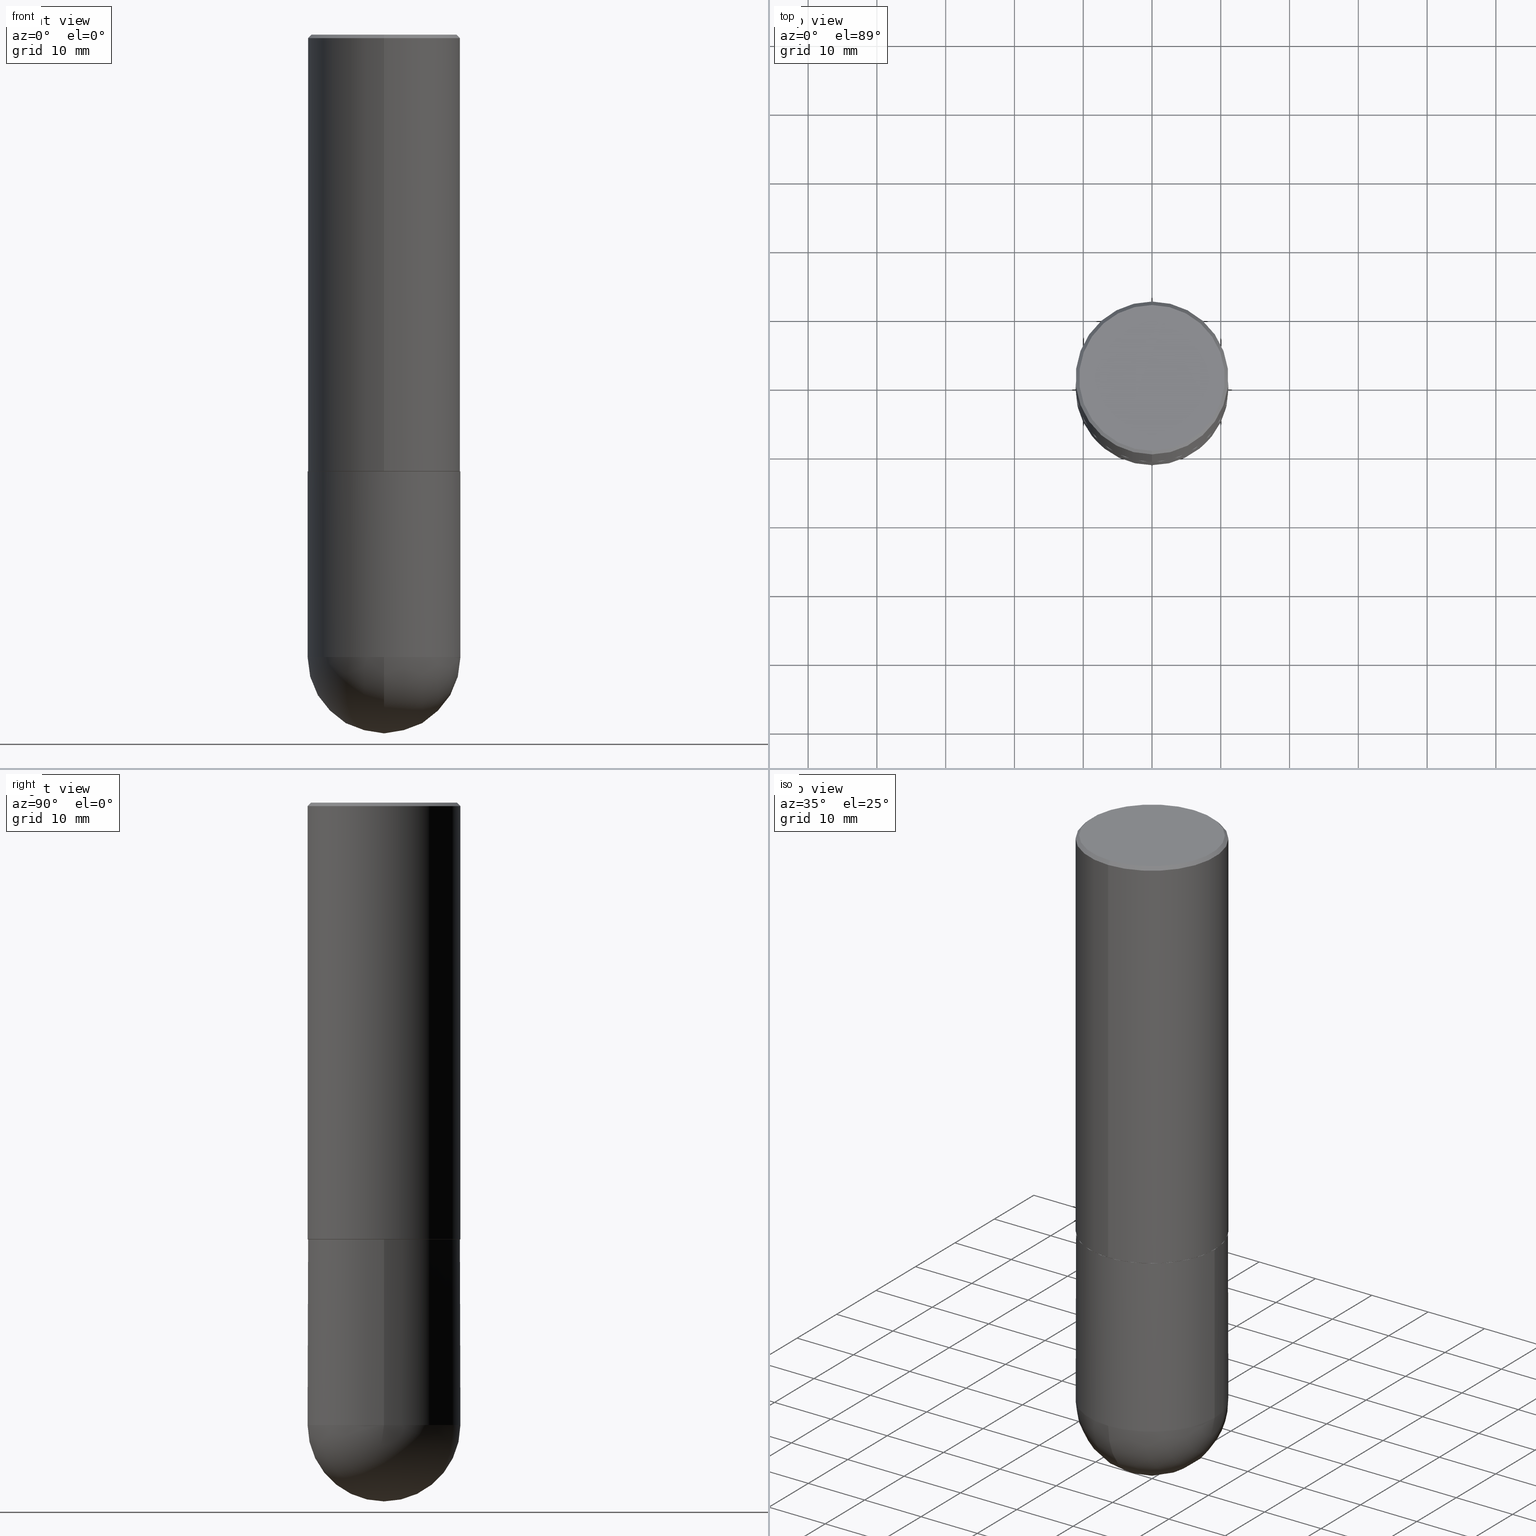
[diagram: canonical four-view strip — front | top / right | iso, engineering-drawing reading convention]
A machine part, canonical four-view strip (front | top / right | iso — engineering-drawing reading convention). The complete STEP part file that produces these views, byte-faithful:
ISO-10303-21;
HEADER;
FILE_DESCRIPTION (( 'STEP AP203' ),
    '1' );
FILE_NAME ('30374.STEP',
    '2024-02-21T16:37:36',
    ( '' ),
    ( '' ),
    'SwSTEP 2.0',
    'SolidWorks 2023',
    '' );
FILE_SCHEMA (( 'CONFIG_CONTROL_DESIGN' ));
ENDSEC;

DATA;
#1 = FACE_OUTER_BOUND ( 'NONE', #221, .T. ) ;
#2 = CARTESIAN_POINT ( 'NONE',  ( 6.116300670249132557E-29, -8.724938963840157850E-15, -2.500000000000000000 ) ) ;
#3 = EDGE_LOOP ( 'NONE', ( #388, #53, #258, #27 ) ) ;
#4 = CARTESIAN_POINT ( 'NONE',  ( 0.000000000000000000, 0.000000000000000000, 0.000000000000000000 ) ) ;
#5 = EDGE_CURVE ( 'NONE', #383, #230, #282, .T. ) ;
#6 = ORIENTED_EDGE ( 'NONE', *, *, #241, .T. ) ;
#7 = DIRECTION ( 'NONE',  ( -6.982962677686265133E-15, -1.000000000000000000, 3.492862791899308071E-15 ) ) ;
#8 = DIRECTION ( 'NONE',  ( 1.000000000000000000, -6.982962677686266711E-15, 4.876176775795935232E-29 ) ) ;
#9 = ORIENTED_EDGE ( 'NONE', *, *, #354, .T. ) ;
#10 = APPROVAL_DATE_TIME ( #296, #155 ) ;
#11 = DATE_AND_TIME ( #109, #303 ) ;
#12 = PLANE ( 'NONE',  #399 ) ;
#13 = CARTESIAN_POINT ( 'NONE',  ( 3.055046171487827277E-15, 0.4374999999999873435, -3.562500000000001776 ) ) ;
#14 = DIRECTION ( 'NONE',  ( 4.937700262164544887E-15, 0.7071067811865446862, -0.7071067811865503483 ) ) ;
#15 = CARTESIAN_POINT ( 'NONE',  ( 4.893040536199329818E-31, -6.979951171072159925E-17, -0.02000000000000009756 ) ) ;
#16 = EDGE_CURVE ( 'NONE', #228, #249, #276, .T. ) ;
#17 = CIRCLE ( 'NONE', #56, 0.4374999999999998890 ) ;
#18 = ORGANIZATION ( 'UNSPECIFIED', 'UNSPECIFIED', '' ) ;
#19 = DIRECTION ( 'NONE',  ( 6.982962677686265922E-15, 1.000000000000000000, -3.746534391310987979E-15 ) ) ;
#20 = ADVANCED_FACE ( 'NONE', ( #356 ), #386, .T. ) ;
#21 = AXIS2_PLACEMENT_3D ( 'NONE', #287, #411, #375 ) ;
#22 = APPROVAL_PERSON_ORGANIZATION ( #99, #29, #271 ) ;
#23 = ADVANCED_FACE ( 'NONE', ( #132 ), #74, .T. ) ;
#24 = ORIENTED_EDGE ( 'NONE', *, *, #60, .F. ) ;
#25 = VERTEX_POINT ( 'NONE', #321 ) ;
#26 = DIRECTION ( 'NONE',  ( 5.024295867789263036E-15, 0.7071067811867189912, 0.7071067811863760433 ) ) ;
#27 = ORIENTED_EDGE ( 'NONE', *, *, #377, .T. ) ;
#28 = APPLICATION_PROTOCOL_DEFINITION ( 'international standard', 'config_control_design', 1994, #46 ) ;
#29 = APPROVAL ( #360, 'UNSPECIFIED' ) ;
#30 = ORIENTED_EDGE ( 'NONE', *, *, #178, .F. ) ;
#31 = EDGE_LOOP ( 'NONE', ( #165, #135, #162, #182, #218 ) ) ;
#32 = CARTESIAN_POINT ( 'NONE',  ( 2.985216544710877599E-15, 0.4174999999999997047, -1.265610396912493471E-15 ) ) ;
#33 = DIRECTION ( 'NONE',  ( 1.000000000000000000, -6.982962677686265133E-15, 0.000000000000000000 ) ) ;
#34 = ORIENTED_EDGE ( 'NONE', *, *, #57, .F. ) ;
#35 = DIRECTION ( 'NONE',  ( -2.446520268099652630E-29, 3.489975585536062903E-15, 1.000000000000000000 ) ) ;
#36 = EDGE_LOOP ( 'NONE', ( #295, #9 ) ) ;
#37 = CYLINDRICAL_SURFACE ( 'NONE', #63, 0.4374999999999998890 ) ;
#38 = DATE_TIME_ROLE ( 'creation_date' ) ;
#39 = CARTESIAN_POINT ( 'NONE',  ( -3.048063208809993352E-15, -0.4365000000000087144, -2.499999999999998668 ) ) ;
#40 = ORIENTED_EDGE ( 'NONE', *, *, #260, .F. ) ;
#41 = PRODUCT ( '30374', '30374', '', ( #308 ) ) ;
#42 = CLOSED_SHELL ( 'NONE', ( #319, #180, #84, #75, #20 ) ) ;
#43 = AXIS2_PLACEMENT_3D ( 'NONE', #110, #231, #355 ) ;
#44 = DIRECTION ( 'NONE',  ( -6.982962677686265922E-15, -1.000000000000000000, 3.489975585536062903E-15 ) ) ;
#45 = DIRECTION ( 'NONE',  ( -2.445468806185136877E-29, 3.491481338843145188E-15, 1.000000000000000000 ) ) ;
#46 = APPLICATION_CONTEXT ( 'configuration controlled 3d designs of mechanical parts and assemblies' ) ;
#47 = CARTESIAN_POINT ( 'NONE',  ( 3.108624468950470262E-15, 0.4374999999999915068, -2.499000000000001886 ) ) ;
#48 = DIRECTION ( 'NONE',  ( 1.000000000000000000, -6.982962677686265922E-15, 4.883557194083112340E-29 ) ) ;
#49 =( NAMED_UNIT ( * ) SI_UNIT ( $, .STERADIAN. ) SOLID_ANGLE_UNIT ( ) );
#50 = EDGE_CURVE ( 'NONE', #87, #370, #326, .T. ) ;
#51 = CIRCLE ( 'NONE', #175, 0.4375000000000000000 ) ;
#52 =( CONVERSION_BASED_UNIT ( 'INCH', #372 ) LENGTH_UNIT ( ) NAMED_UNIT ( #298 ) );
#53 = ORIENTED_EDGE ( 'NONE', *, *, #250, .F. ) ;
#54 = DIRECTION ( 'NONE',  ( 0.000000000000000000, 0.000000000000000000, 1.000000000000000000 ) ) ;
#55 = EDGE_LOOP ( 'NONE', ( #246, #207, #190, #133, #339 ) ) ;
#56 = AXIS2_PLACEMENT_3D ( 'NONE', #363, #172, #206 ) ;
#57 = EDGE_CURVE ( 'NONE', #66, #230, #174, .T. ) ;
#58 = DIRECTION ( 'NONE',  ( -2.446520268099652630E-29, 3.489975585536062903E-15, 1.000000000000000000 ) ) ;
#59 = CARTESIAN_POINT ( 'NONE',  ( 8.380862844120662879E-29, -1.291258463776875784E-14, -3.562500000000000000 ) ) ;
#60 = EDGE_CURVE ( 'NONE', #245, #25, #69, .T. ) ;
#61 = DIRECTION ( 'NONE',  ( -2.446520268099652630E-29, 3.489975585536062903E-15, 1.000000000000000000 ) ) ;
#62 = CARTESIAN_POINT ( 'NONE',  ( 0.000000000000000000, 0.000000000000000000, 0.000000000000000000 ) ) ;
#63 = AXIS2_PLACEMENT_3D ( 'NONE', #4, #273, #233 ) ;
#64 = CC_DESIGN_APPROVAL ( #155, ( #274 ) ) ;
#65 = EDGE_LOOP ( 'NONE', ( #185, #280 ) ) ;
#66 = VERTEX_POINT ( 'NONE', #168 ) ;
#67 = DIRECTION ( 'NONE',  ( -2.446520268099652630E-29, 3.489975585536062903E-15, 1.000000000000000000 ) ) ;
#68 = ADVANCED_FACE ( 'NONE', ( #297 ), #12, .F. ) ;
#69 = LINE ( 'NONE', #197, #169 ) ;
#70 = DIRECTION ( 'NONE',  ( -7.105427357601001070E-15, -1.000000000000000000, 0.000000000000000000 ) ) ;
#71 = DIRECTION ( 'NONE',  ( 2.446520268099652630E-29, -3.489975585536062903E-15, -1.000000000000000000 ) ) ;
#72 = CALENDAR_DATE ( 2024, 21, 2 ) ;
#73 = CARTESIAN_POINT ( 'NONE',  ( 3.055046171487802034E-15, 0.4374999999999912292, -2.500000000000001776 ) ) ;
#74 = CONICAL_SURFACE ( 'NONE', #333, 0.4364999999999999991, 0.7853981633976873100 ) ;
#75 = ADVANCED_FACE ( 'NONE', ( #359 ), #113, .F. ) ;
#76 = AXIS2_PLACEMENT_3D ( 'NONE', #59, #406, #289 ) ;
#77 = COORDINATED_UNIVERSAL_TIME_OFFSET ( 5, 0, .BEHIND. ) ;
#78 = CARTESIAN_POINT ( 'NONE',  ( 3.108624468950438708E-15, 0.4375000000000001110, -1.526864318672027939E-15 ) ) ;
#79 = PERSON_AND_ORGANIZATION_ROLE ( 'design_owner' ) ;
#80 = CARTESIAN_POINT ( 'NONE',  ( -3.001467874025043875E-15, -0.4375000000000000555, -0.01999999999999857100 ) ) ;
#81 = ADVANCED_FACE ( 'NONE', ( #272 ), #291, .F. ) ;
#82 = ORIENTED_EDGE ( 'NONE', *, *, #340, .F. ) ;
#83 = VECTOR ( 'NONE', #45, 39.37007874015748143 ) ;
#84 = ADVANCED_FACE ( 'NONE', ( #208 ), #311, .T. ) ;
#85 = DIRECTION ( 'NONE',  ( -4.851104656540961119E-15, -0.7071067811865495711, -0.7071067811865454633 ) ) ;
#86 = AXIS2_PLACEMENT_3D ( 'NONE', #371, #219, #146 ) ;
#87 = VERTEX_POINT ( 'NONE', #404 ) ;
#88 = EDGE_LOOP ( 'NONE', ( #292, #179, #34, #343 ) ) ;
#89 = EDGE_LOOP ( 'NONE', ( #91, #101, #40, #307 ) ) ;
#90 = CC_DESIGN_PERSON_AND_ORGANIZATION_ASSIGNMENT ( #366, #212, ( #274 ) ) ;
#91 = ORIENTED_EDGE ( 'NONE', *, *, #5, .F. ) ;
#92 = CARTESIAN_POINT ( 'NONE',  ( 8.711982622034549126E-29, -1.243840226962870597E-14, -3.562500000000000000 ) ) ;
#93 = AXIS2_PLACEMENT_3D ( 'NONE', #134, #335, #19 ) ;
#94 = CYLINDRICAL_SURFACE ( 'NONE', #412, 0.4375000000000001110 ) ;
#95 = CC_DESIGN_SECURITY_CLASSIFICATION ( #123, ( #274 ) ) ;
#96 = PERSON ( 'UNSPECIFIED', 'UNSPECIFIED', 'UNSPECIFIED', ('UNSPECIFIED'), ('UNSPECIFIED'), ('UNSPECIFIED') ) ;
#97 = FACE_OUTER_BOUND ( 'NONE', #126, .T. ) ;
#98 = CC_DESIGN_DATE_AND_TIME_ASSIGNMENT ( #11, #227, ( #123 ) ) ;
#99 = PERSON_AND_ORGANIZATION ( #96, #18 ) ;
#100 = COORDINATED_UNIVERSAL_TIME_OFFSET ( 5, 0, .BEHIND. ) ;
#101 = ORIENTED_EDGE ( 'NONE', *, *, #211, .T. ) ;
#102 = DIRECTION ( 'NONE',  ( -6.982962677686264344E-15, -1.000000000000000000, 3.755117517064279208E-15 ) ) ;
#103 = DATE_AND_TIME ( #72, #368 ) ;
#104 = EDGE_CURVE ( 'NONE', #310, #87, #318, .T. ) ;
#105 = DIRECTION ( 'NONE',  ( -6.982962677686264344E-15, -1.000000000000000000, 3.755117517064279208E-15 ) ) ;
#106 =( GEOMETRIC_REPRESENTATION_CONTEXT ( 3 ) GLOBAL_UNCERTAINTY_ASSIGNED_CONTEXT ( ( #181 ) ) GLOBAL_UNIT_ASSIGNED_CONTEXT ( ( #52, #220, #49 ) ) REPRESENTATION_CONTEXT ( 'NONE', 'WORKASPACE' ) );
#107 = ORIENTED_EDGE ( 'NONE', *, *, #178, .T. ) ;
#108 = CARTESIAN_POINT ( 'NONE',  ( -4.683970946014791143E-45, 6.681712168135623282E-31, 1.914544100488114634E-16 ) ) ;
#109 = CALENDAR_DATE ( 2024, 21, 2 ) ;
#110 = CARTESIAN_POINT ( 'NONE',  ( 8.711982622034549126E-29, -1.243840226962870597E-14, -3.562500000000000000 ) ) ;
#111 = DIRECTION ( 'NONE',  ( -2.445468806185136597E-29, 3.491481338843145583E-15, 1.000000000000000000 ) ) ;
#112 = DIRECTION ( 'NONE',  ( 1.000000000000000000, -6.982962677686265133E-15, 0.000000000000000000 ) ) ;
#113 = PLANE ( 'NONE',  #362 ) ;
#114 = LINE ( 'NONE', #365, #243 ) ;
#115 = VECTOR ( 'NONE', #389, 39.37007874015748143 ) ;
#116 = CC_DESIGN_APPROVAL ( #394, ( #123 ) ) ;
#117 = ADVANCED_FACE ( 'NONE', ( #279 ), #248, .T. ) ;
#118 = ORIENTED_EDGE ( 'NONE', *, *, #104, .T. ) ;
#119 = DIRECTION ( 'NONE',  ( -2.445468806185136597E-29, 3.491481338843145583E-15, 1.000000000000000000 ) ) ;
#120 = PRODUCT_DEFINITION_SHAPE ( 'NONE', 'NONE',  #397 ) ;
#121 = CLOSED_SHELL ( 'NONE', ( #144, #268, #302, #409, #117, #23, #81, #68 ) ) ;
#122 = AXIS2_PLACEMENT_3D ( 'NONE', #127, #158, #159 ) ;
#123 = SECURITY_CLASSIFICATION ( '', '', #393 ) ;
#124 = ORIENTED_EDGE ( 'NONE', *, *, #242, .T. ) ;
#125 = CC_DESIGN_PERSON_AND_ORGANIZATION_ASSIGNMENT ( #166, #255, ( #397 ) ) ;
#126 = EDGE_LOOP ( 'NONE', ( #262, #129, #30, #254 ) ) ;
#127 = CARTESIAN_POINT ( 'NONE',  ( 6.116300670249132557E-29, -8.724938963840157850E-15, -2.500000000000000000 ) ) ;
#128 = DIRECTION ( 'NONE',  ( -6.982962677686265922E-15, -1.000000000000000000, 3.489975585536062903E-15 ) ) ;
#129 = ORIENTED_EDGE ( 'NONE', *, *, #285, .T. ) ;
#130 = AXIS2_PLACEMENT_3D ( 'NONE', #92, #119, #33 ) ;
#131 = CARTESIAN_POINT ( 'NONE',  ( 8.711982622034549126E-29, -1.243840226962870597E-14, -3.562500000000000000 ) ) ;
#132 = FACE_OUTER_BOUND ( 'NONE', #352, .T. ) ;
#133 = ORIENTED_EDGE ( 'NONE', *, *, #325, .F. ) ;
#134 = CARTESIAN_POINT ( 'NONE',  ( 8.380862844120662879E-29, -1.291258463776875784E-14, -3.562500000000000000 ) ) ;
#135 = ORIENTED_EDGE ( 'NONE', *, *, #57, .T. ) ;
#136 = VECTOR ( 'NONE', #251, 39.37007874015748143 ) ;
#137 = AXIS2_PLACEMENT_3D ( 'NONE', #342, #54, #183 ) ;
#138 = ORIENTED_EDGE ( 'NONE', *, *, #377, .F. ) ;
#139 = EDGE_CURVE ( 'NONE', #230, #405, #229, .T. ) ;
#140 = APPROVAL_STATUS ( 'not_yet_approved' ) ;
#141 = CARTESIAN_POINT ( 'NONE',  ( 2.915386917934013906E-15, 0.4174999999999997047, -1.361337601936899635E-15 ) ) ;
#142 = DIRECTION ( 'NONE',  ( -1.000000000000000000, 6.982962677686265922E-15, -4.876176775795935793E-29 ) ) ;
#143 =( LENGTH_UNIT ( ) NAMED_UNIT ( * ) SI_UNIT ( $, .METRE. ) );
#144 = ADVANCED_FACE ( 'NONE', ( #97 ), #167, .T. ) ;
#145 = AXIS2_PLACEMENT_3D ( 'NONE', #173, #35, #176 ) ;
#146 = DIRECTION ( 'NONE',  ( 6.982962677686265133E-15, 1.000000000000000000, -3.492862791899308071E-15 ) ) ;
#147 = CARTESIAN_POINT ( 'NONE',  ( 8.380862844120662879E-29, -1.291258463776875784E-14, -3.562500000000000000 ) ) ;
#148 = PERSON_AND_ORGANIZATION ( #96, #18 ) ;
#149 = CARTESIAN_POINT ( 'NONE',  ( 6.113672015462842613E-29, -8.728703347107864943E-15, -2.500000000000000000 ) ) ;
#150 = EDGE_CURVE ( 'NONE', #66, #228, #361, .T. ) ;
#151 = ORIENTED_EDGE ( 'NONE', *, *, #241, .F. ) ;
#152 = CALENDAR_DATE ( 2024, 21, 2 ) ;
#153 = VERTEX_POINT ( 'NONE', #47 ) ;
#154 = FACE_OUTER_BOUND ( 'NONE', #322, .T. ) ;
#155 = APPROVAL ( #195, 'UNSPECIFIED' ) ;
#156 = CIRCLE ( 'NONE', #145, 0.4375000000000002776 ) ;
#157 = EDGE_LOOP ( 'NONE', ( #82, #376 ) ) ;
#158 = DIRECTION ( 'NONE',  ( -2.446520268099652630E-29, 3.489975585536062903E-15, 1.000000000000000000 ) ) ;
#159 = DIRECTION ( 'NONE',  ( -6.982962677686264344E-15, -1.000000000000000000, 3.755117517064279208E-15 ) ) ;
#160 = CIRCLE ( 'NONE', #213, 0.4375000000000002776 ) ;
#161 = VERTEX_POINT ( 'NONE', #80 ) ;
#162 = ORIENTED_EDGE ( 'NONE', *, *, #139, .T. ) ;
#163 = CARTESIAN_POINT ( 'NONE',  ( 0.4374999999999998890, -3.055046171487740897E-15, 2.133327339410721209E-29 ) ) ;
#164 = COORDINATED_UNIVERSAL_TIME_OFFSET ( 5, 0, .BEHIND. ) ;
#165 = ORIENTED_EDGE ( 'NONE', *, *, #150, .F. ) ;
#166 = PERSON_AND_ORGANIZATION ( #96, #18 ) ;
#167 = CONICAL_SURFACE ( 'NONE', #312, 0.4364999999999999991, 0.7853981633976873100 ) ;
#168 = CARTESIAN_POINT ( 'NONE',  ( -0.4374999999999998890, -7.474928339417851874E-15, -3.562500000000000000 ) ) ;
#169 = VECTOR ( 'NONE', #14, 39.37007874015748143 ) ;
#170 = DESIGN_CONTEXT ( 'detailed design', #261, 'design' ) ;
#171 = CC_DESIGN_PERSON_AND_ORGANIZATION_ASSIGNMENT ( #217, #403, ( #274 ) ) ;
#172 = DIRECTION ( 'NONE',  ( -2.445468806185136597E-29, 3.491481338843145583E-15, 1.000000000000000000 ) ) ;
#173 = CARTESIAN_POINT ( 'NONE',  ( 6.113854149981033181E-29, -8.721448988254622305E-15, -2.499000000000000110 ) ) ;
#174 = CIRCLE ( 'NONE', #43, 0.4374999999999998890 ) ;
#175 = AXIS2_PLACEMENT_3D ( 'NONE', #353, #67, #194 ) ;
#176 = DIRECTION ( 'NONE',  ( -6.982962677686265133E-15, -1.000000000000000000, 3.746534391310987190E-15 ) ) ;
#177 = DIRECTION ( 'NONE',  ( 6.982962677686265922E-15, 1.000000000000000000, 0.000000000000000000 ) ) ;
#178 = EDGE_CURVE ( 'NONE', #370, #153, #156, .T. ) ;
#179 = ORIENTED_EDGE ( 'NONE', *, *, #5, .T. ) ;
#180 = ADVANCED_FACE ( 'NONE', ( #384 ), #304, .T. ) ;
#181 = UNCERTAINTY_MEASURE_WITH_UNIT (LENGTH_MEASURE( 1.000000000000000082E-05 ), #52, 'distance_accuracy_value', 'NONE');
#182 = ORIENTED_EDGE ( 'NONE', *, *, #325, .T. ) ;
#183 = DIRECTION ( 'NONE',  ( 1.000000000000000000, 0.000000000000000000, 0.000000000000000000 ) ) ;
#184 = AXIS2_PLACEMENT_3D ( 'NONE', #131, #378, #345 ) ;
#185 = ORIENTED_EDGE ( 'NONE', *, *, #203, .T. ) ;
#186 = LINE ( 'NONE', #281, #398 ) ;
#187 = DIRECTION ( 'NONE',  ( -2.446520268099652630E-29, 3.489975585536062903E-15, 1.000000000000000000 ) ) ;
#188 = VECTOR ( 'NONE', #205, 39.37007874015748143 ) ;
#189 = LOCAL_TIME ( 11, 37, 36.00000000000000000, #380 ) ;
#190 = ORIENTED_EDGE ( 'NONE', *, *, #203, .F. ) ;
#191 = CARTESIAN_POINT ( 'NONE',  ( 4.893040536199329818E-31, -6.979951171072159925E-17, -0.02000000000000009756 ) ) ;
#192 = DIRECTION ( 'NONE',  ( -2.445468806185136597E-29, 3.491481338843145583E-15, 1.000000000000000000 ) ) ;
#193 = ORIENTED_EDGE ( 'NONE', *, *, #242, .F. ) ;
#194 = DIRECTION ( 'NONE',  ( -6.982962677686265133E-15, -1.000000000000000000, 3.492862791899308071E-15 ) ) ;
#195 = APPROVAL_STATUS ( 'not_yet_approved' ) ;
#196 = APPROVAL_DATE_TIME ( #198, #394 ) ;
#197 = CARTESIAN_POINT ( 'NONE',  ( 3.055046171487741686E-15, 0.4374999999999998890, -0.02000000000000162759 ) ) ;
#198 = DATE_AND_TIME ( #152, #351 ) ;
#199 = CIRCLE ( 'NONE', #387, 0.4375000000000000000 ) ;
#200 = MANIFOLD_SOLID_BREP ( 'Body-Move/Copy2[2]', #121 ) ;
#201 = DIRECTION ( 'NONE',  ( 2.438088387897960049E-29, -3.491481338843145188E-15, -1.000000000000000000 ) ) ;
#202 = LOCAL_TIME ( 11, 37, 36.00000000000000000, #77 ) ;
#203 = EDGE_CURVE ( 'NONE', #249, #228, #395, .T. ) ;
#204 = CALENDAR_DATE ( 2024, 21, 2 ) ;
#205 = DIRECTION ( 'NONE',  ( -2.446520268099652630E-29, 3.489975585536062903E-15, 1.000000000000000000 ) ) ;
#206 = DIRECTION ( 'NONE',  ( 1.000000000000000000, -6.982962677686265133E-15, 0.000000000000000000 ) ) ;
#207 = ORIENTED_EDGE ( 'NONE', *, *, #150, .T. ) ;
#208 = FACE_OUTER_BOUND ( 'NONE', #89, .T. ) ;
#209 = AXIS2_PLACEMENT_3D ( 'NONE', #147, #48, #177 ) ;
#210 = DIRECTION ( 'NONE',  ( -2.445468806185136597E-29, 3.491481338843145583E-15, 1.000000000000000000 ) ) ;
#211 = EDGE_CURVE ( 'NONE', #383, #341, #337, .T. ) ;
#212 = PERSON_AND_ORGANIZATION_ROLE ( 'creator' ) ;
#213 = AXIS2_PLACEMENT_3D ( 'NONE', #346, #61, #374 ) ;
#214 = EDGE_CURVE ( 'NONE', #153, #25, #396, .T. ) ;
#215 = COORDINATED_UNIVERSAL_TIME_OFFSET ( 5, 0, .BEHIND. ) ;
#216 = ORIENTED_EDGE ( 'NONE', *, *, #369, .T. ) ;
#217 = PERSON_AND_ORGANIZATION ( #96, #18 ) ;
#218 = ORIENTED_EDGE ( 'NONE', *, *, #16, .F. ) ;
#219 = DIRECTION ( 'NONE',  ( 2.446520268099652630E-29, -3.489975585536062903E-15, -1.000000000000000000 ) ) ;
#220 =( NAMED_UNIT ( * ) PLANE_ANGLE_UNIT ( ) SI_UNIT ( $, .RADIAN. ) );
#221 = EDGE_LOOP ( 'NONE', ( #107, #309, #313, #193 ) ) ;
#222 = CARTESIAN_POINT ( 'NONE',  ( -3.055046171487742080E-15, -0.4375000000000001110, 1.526864318672027939E-15 ) ) ;
#223 = CIRCLE ( 'NONE', #277, 0.4364999999999999991 ) ;
#224 = DIRECTION ( 'NONE',  ( -2.446520268099652630E-29, 3.489975585536062903E-15, 1.000000000000000000 ) ) ;
#225 = LINE ( 'NONE', #222, #136 ) ;
#226 = PERSON_AND_ORGANIZATION ( #96, #18 ) ;
#227 = DATE_TIME_ROLE ( 'classification_date' ) ;
#228 = VERTEX_POINT ( 'NONE', #329 ) ;
#229 = CIRCLE ( 'NONE', #130, 0.4374999999999998890 ) ;
#230 = VERTEX_POINT ( 'NONE', #314 ) ;
#231 = DIRECTION ( 'NONE',  ( -2.445468806185136597E-29, 3.491481338843145583E-15, 1.000000000000000000 ) ) ;
#232 = DIRECTION ( 'NONE',  ( 1.000000000000000000, -6.982962677686265133E-15, 0.000000000000000000 ) ) ;
#233 = DIRECTION ( 'NONE',  ( 1.000000000000000000, -6.982962677686266711E-15, 4.876176775795935232E-29 ) ) ;
#234 = CC_DESIGN_PERSON_AND_ORGANIZATION_ASSIGNMENT ( #148, #79, ( #41 ) ) ;
#235 = DIRECTION ( 'NONE',  ( 6.982962677686265922E-15, 1.000000000000000000, -3.489975585536062903E-15 ) ) ;
#236 = CARTESIAN_POINT ( 'NONE',  ( 6.116300670249132557E-29, -8.724938963840157850E-15, -2.500000000000000000 ) ) ;
#237 = AXIS2_PLACEMENT_3D ( 'NONE', #286, #407, #128 ) ;
#238 = DIRECTION ( 'NONE',  ( -2.446520268099652630E-29, 3.489975585536062903E-15, 1.000000000000000000 ) ) ;
#239 = FACE_OUTER_BOUND ( 'NONE', #55, .T. ) ;
#240 = CONICAL_SURFACE ( 'NONE', #86, 0.4375000000000000000, 0.7853981633974477239 ) ;
#241 = EDGE_CURVE ( 'NONE', #153, #370, #160, .T. ) ;
#242 = EDGE_CURVE ( 'NONE', #370, #161, #225, .T. ) ;
#243 = VECTOR ( 'NONE', #85, 39.37007874015748143 ) ;
#244 = CC_DESIGN_APPROVAL ( #29, ( #397 ) ) ;
#245 = VERTEX_POINT ( 'NONE', #32 ) ;
#246 = ORIENTED_EDGE ( 'NONE', *, *, #305, .T. ) ;
#247 = ORIENTED_EDGE ( 'NONE', *, *, #317, .T. ) ;
#248 = CYLINDRICAL_SURFACE ( 'NONE', #21, 0.4375000000000001110 ) ;
#249 = VERTEX_POINT ( 'NONE', #288 ) ;
#250 = EDGE_CURVE ( 'NONE', #245, #293, #349, .T. ) ;
#251 = DIRECTION ( 'NONE',  ( -2.446520268099652630E-29, 3.489975585536062903E-15, 1.000000000000000000 ) ) ;
#252 = AXIS2_PLACEMENT_3D ( 'NONE', #391, #111, #232 ) ;
#253 = APPROVAL_PERSON_ORGANIZATION ( #347, #394, #385 ) ;
#254 = ORIENTED_EDGE ( 'NONE', *, *, #50, .F. ) ;
#255 = PERSON_AND_ORGANIZATION_ROLE ( 'creator' ) ;
#256 = DIRECTION ( 'NONE',  ( -6.982962677686265922E-15, -1.000000000000000000, 3.489975585536062903E-15 ) ) ;
#257 = DIRECTION ( 'NONE',  ( -2.446520268099652350E-29, 3.489975585536062903E-15, 1.000000000000000000 ) ) ;
#258 = ORIENTED_EDGE ( 'NONE', *, *, #60, .T. ) ;
#259 = PERSON_AND_ORGANIZATION ( #96, #18 ) ;
#260 = EDGE_CURVE ( 'NONE', #405, #341, #264, .T. ) ;
#261 = APPLICATION_CONTEXT ( 'configuration controlled 3d designs of mechanical parts and assemblies' ) ;
#262 = ORIENTED_EDGE ( 'NONE', *, *, #340, .T. ) ;
#263 = CALENDAR_DATE ( 2024, 21, 2 ) ;
#264 = CIRCLE ( 'NONE', #184, 0.4374999999999998890 ) ;
#265 = CARTESIAN_POINT ( 'NONE',  ( 6.116300670249132557E-29, -8.724938963840157850E-15, -2.500000000000000000 ) ) ;
#266 = DIRECTION ( 'NONE',  ( -1.000000000000000000, 7.105427357601001070E-15, -4.926315508542082329E-29 ) ) ;
#267 = LINE ( 'NONE', #163, #115 ) ;
#268 = ADVANCED_FACE ( 'NONE', ( #1 ), #94, .T. ) ;
#269 = DIRECTION ( 'NONE',  ( 2.446520268099652350E-29, -3.489975585536062903E-15, -1.000000000000000000 ) ) ;
#270 = DIRECTION ( 'NONE',  ( 6.982962677686265133E-15, 1.000000000000000000, -3.492862791899308071E-15 ) ) ;
#271 = APPROVAL_ROLE ( '' ) ;
#272 = FACE_OUTER_BOUND ( 'NONE', #157, .T. ) ;
#273 = DIRECTION ( 'NONE',  ( -2.445468806185136597E-29, 3.491481338843145583E-15, 1.000000000000000000 ) ) ;
#274 = PRODUCT_DEFINITION_FORMATION_WITH_SPECIFIED_SOURCE ( 'ANY', '', #41, .NOT_KNOWN. ) ;
#275 = CARTESIAN_POINT ( 'NONE',  ( 3.105071755271698946E-15, 0.4364999999999912283, -2.500000000000001776 ) ) ;
#276 = CIRCLE ( 'NONE', #252, 0.4375000000000000000 ) ;
#277 = AXIS2_PLACEMENT_3D ( 'NONE', #236, #187, #102 ) ;
#278 = CC_DESIGN_DATE_AND_TIME_ASSIGNMENT ( #103, #38, ( #397 ) ) ;
#279 = FACE_OUTER_BOUND ( 'NONE', #320, .T. ) ;
#280 = ORIENTED_EDGE ( 'NONE', *, *, #16, .T. ) ;
#281 = CARTESIAN_POINT ( 'NONE',  ( 3.101519041592897653E-15, 0.4364999999999912283, -2.500000000000001776 ) ) ;
#282 = CIRCLE ( 'NONE', #367, 0.4375000000000001665 ) ;
#283 = ORIENTED_EDGE ( 'NONE', *, *, #50, .T. ) ;
#284 = CC_DESIGN_PERSON_AND_ORGANIZATION_ASSIGNMENT ( #259, #381, ( #123 ) ) ;
#285 = EDGE_CURVE ( 'NONE', #310, #153, #186, .T. ) ;
#286 = CARTESIAN_POINT ( 'NONE',  ( -4.683970946014791143E-45, 6.681712168135623282E-31, 1.914544100488114634E-16 ) ) ;
#287 = CARTESIAN_POINT ( 'NONE',  ( 0.000000000000000000, 0.000000000000000000, 0.000000000000000000 ) ) ;
#288 = CARTESIAN_POINT ( 'NONE',  ( 0.4375000000000000000, -1.178374951859560505E-14, -2.500000000000000000 ) ) ;
#289 = DIRECTION ( 'NONE',  ( 6.982962677686265922E-15, 1.000000000000000000, -3.746534391310987979E-15 ) ) ;
#290 = AXIS2_PLACEMENT_3D ( 'NONE', #149, #210, #112 ) ;
#291 = PLANE ( 'NONE',  #334 ) ;
#292 = ORIENTED_EDGE ( 'NONE', *, *, #211, .F. ) ;
#293 = VERTEX_POINT ( 'NONE', #316 ) ;
#294 = DIRECTION ( 'NONE',  ( -2.446520268099652630E-29, 3.489975585536062903E-15, 1.000000000000000000 ) ) ;
#295 = ORIENTED_EDGE ( 'NONE', *, *, #250, .T. ) ;
#296 = DATE_AND_TIME ( #263, #189 ) ;
#297 = FACE_OUTER_BOUND ( 'NONE', #36, .T. ) ;
#298 = DIMENSIONAL_EXPONENTS ( 1.000000000000000000, 0.000000000000000000, 0.000000000000000000, 0.000000000000000000, 0.000000000000000000, 0.000000000000000000, 0.000000000000000000 ) ;
#299 = CARTESIAN_POINT ( 'NONE',  ( -3.055046171487681732E-15, -0.4375000000000089928, -2.498999999999998778 ) ) ;
#300 = APPROVAL_DATE_TIME ( #328, #29 ) ;
#301 = CIRCLE ( 'NONE', #379, 0.4174999999999997047 ) ;
#302 = ADVANCED_FACE ( 'NONE', ( #154 ), #240, .T. ) ;
#303 = LOCAL_TIME ( 11, 37, 36.00000000000000000, #100 ) ;
#304 = SPHERICAL_SURFACE ( 'NONE', #93, 0.4375000000000001665 ) ;
#305 = EDGE_CURVE ( 'NONE', #341, #66, #17, .T. ) ;
#306 = AXIS2_PLACEMENT_3D ( 'NONE', #15, #71, #270 ) ;
#307 = ORIENTED_EDGE ( 'NONE', *, *, #139, .F. ) ;
#308 = MECHANICAL_CONTEXT ( 'NONE', #46, 'mechanical' ) ;
#309 = ORIENTED_EDGE ( 'NONE', *, *, #214, .T. ) ;
#310 = VERTEX_POINT ( 'NONE', #275 ) ;
#311 = SPHERICAL_SURFACE ( 'NONE', #76, 0.4375000000000001665 ) ;
#312 = AXIS2_PLACEMENT_3D ( 'NONE', #408, #224, #330 ) ;
#313 = ORIENTED_EDGE ( 'NONE', *, *, #369, .F. ) ;
#314 = CARTESIAN_POINT ( 'NONE',  ( -3.108624468950352327E-15, -0.4375000000000127676, -3.562499999999998224 ) ) ;
#315 = SHAPE_DEFINITION_REPRESENTATION ( #120, #331 ) ;
#316 = CARTESIAN_POINT ( 'NONE',  ( -2.932862894047327755E-15, -0.4174999999999997047, 1.648519217010116546E-15 ) ) ;
#317 = EDGE_CURVE ( 'NONE', #293, #161, #114, .T. ) ;
#318 = CIRCLE ( 'NONE', #122, 0.4364999999999999991 ) ;
#319 = ADVANCED_FACE ( 'NONE', ( #239 ), #37, .T. ) ;
#320 = EDGE_LOOP ( 'NONE', ( #401, #6, #124, #138 ) ) ;
#321 = CARTESIAN_POINT ( 'NONE',  ( 3.055046171487741686E-15, 0.4374999999999998890, -0.02000000000000162759 ) ) ;
#322 = EDGE_LOOP ( 'NONE', ( #350, #247, #216, #24 ) ) ;
#323 = CARTESIAN_POINT ( 'NONE',  ( 0.4374999999999998890, -1.363859897985603030E-14, -3.562500000000000000 ) ) ;
#324 = APPROVAL_ROLE ( '' ) ;
#325 = EDGE_CURVE ( 'NONE', #405, #249, #267, .T. ) ;
#326 = LINE ( 'NONE', #39, #410 ) ;
#327 = DIRECTION ( 'NONE',  ( -2.446520268099652630E-29, 3.489975585536062903E-15, 1.000000000000000000 ) ) ;
#328 = DATE_AND_TIME ( #204, #202 ) ;
#329 = CARTESIAN_POINT ( 'NONE',  ( -0.4375000000000000000, -7.474928339417847141E-15, -2.500000000000000000 ) ) ;
#330 = DIRECTION ( 'NONE',  ( -6.982962677686264344E-15, -1.000000000000000000, 3.755117517064279208E-15 ) ) ;
#331 = ADVANCED_BREP_SHAPE_REPRESENTATION ( '30374', ( #336, #200, #137 ), #106 ) ;
#332 = CARTESIAN_POINT ( 'NONE',  ( -0.4374999999999998890, 3.108624468950437524E-15, -2.152034101986520964E-29 ) ) ;
#333 = AXIS2_PLACEMENT_3D ( 'NONE', #265, #238, #105 ) ;
#334 = AXIS2_PLACEMENT_3D ( 'NONE', #2, #257, #382 ) ;
#335 = DIRECTION ( 'NONE',  ( -1.000000000000000000, 6.982962677686265922E-15, -4.883557194083112340E-29 ) ) ;
#336 = MANIFOLD_SOLID_BREP ( 'Body-Move/Copy2[1]', #42 ) ;
#337 = CIRCLE ( 'NONE', #209, 0.4375000000000001665 ) ;
#338 = APPROVAL_PERSON_ORGANIZATION ( #226, #155, #324 ) ;
#339 = ORIENTED_EDGE ( 'NONE', *, *, #260, .T. ) ;
#340 = EDGE_CURVE ( 'NONE', #87, #310, #223, .T. ) ;
#341 = VERTEX_POINT ( 'NONE', #13 ) ;
#342 = CARTESIAN_POINT ( 'NONE',  ( 0.000000000000000000, 0.000000000000000000, 0.000000000000000000 ) ) ;
#343 = ORIENTED_EDGE ( 'NONE', *, *, #305, .F. ) ;
#344 = CARTESIAN_POINT ( 'NONE',  ( 0.000000000000000000, 0.000000000000000000, 0.000000000000000000 ) ) ;
#345 = DIRECTION ( 'NONE',  ( 1.000000000000000000, -6.982962677686265133E-15, 0.000000000000000000 ) ) ;
#346 = CARTESIAN_POINT ( 'NONE',  ( 6.113854149981033181E-29, -8.721448988254622305E-15, -2.499000000000000110 ) ) ;
#347 = PERSON_AND_ORGANIZATION ( #96, #18 ) ;
#348 = AXIS2_PLACEMENT_3D ( 'NONE', #62, #192, #8 ) ;
#349 = CIRCLE ( 'NONE', #237, 0.4174999999999997047 ) ;
#350 = ORIENTED_EDGE ( 'NONE', *, *, #354, .F. ) ;
#351 = LOCAL_TIME ( 11, 37, 36.00000000000000000, #215 ) ;
#352 = EDGE_LOOP ( 'NONE', ( #364, #118, #283, #151 ) ) ;
#353 = CARTESIAN_POINT ( 'NONE',  ( 4.893040536199329818E-31, -6.979951171072159925E-17, -0.02000000000000009756 ) ) ;
#354 = EDGE_CURVE ( 'NONE', #293, #245, #301, .T. ) ;
#355 = DIRECTION ( 'NONE',  ( 1.000000000000000000, -6.982962677686265133E-15, 0.000000000000000000 ) ) ;
#356 = FACE_OUTER_BOUND ( 'NONE', #31, .T. ) ;
#357 = FACE_OUTER_BOUND ( 'NONE', #3, .T. ) ;
#358 = APPLICATION_PROTOCOL_DEFINITION ( 'international standard', 'config_control_design', 1994, #261 ) ;
#359 = FACE_OUTER_BOUND ( 'NONE', #65, .T. ) ;
#360 = APPROVAL_STATUS ( 'not_yet_approved' ) ;
#361 = LINE ( 'NONE', #332, #83 ) ;
#362 = AXIS2_PLACEMENT_3D ( 'NONE', #73, #201, #142 ) ;
#363 = CARTESIAN_POINT ( 'NONE',  ( 8.711982622034549126E-29, -1.243840226962870597E-14, -3.562500000000000000 ) ) ;
#364 = ORIENTED_EDGE ( 'NONE', *, *, #285, .F. ) ;
#365 = CARTESIAN_POINT ( 'NONE',  ( -3.001467874025043875E-15, -0.4375000000000000555, -0.01999999999999857100 ) ) ;
#366 = PERSON_AND_ORGANIZATION ( #96, #18 ) ;
#367 = AXIS2_PLACEMENT_3D ( 'NONE', #373, #266, #70 ) ;
#368 = LOCAL_TIME ( 11, 37, 36.00000000000000000, #164 ) ;
#369 = EDGE_CURVE ( 'NONE', #161, #25, #199, .T. ) ;
#370 = VERTEX_POINT ( 'NONE', #299 ) ;
#371 = CARTESIAN_POINT ( 'NONE',  ( 4.893040536199329818E-31, -6.979951171072159925E-17, -0.02000000000000009756 ) ) ;
#372 = LENGTH_MEASURE_WITH_UNIT ( LENGTH_MEASURE( 0.02539999999999999897 ), #143 );
#373 = CARTESIAN_POINT ( 'NONE',  ( 8.380862844120662879E-29, -1.291258463776875784E-14, -3.562500000000000000 ) ) ;
#374 = DIRECTION ( 'NONE',  ( -6.982962677686265133E-15, -1.000000000000000000, 3.746534391310987190E-15 ) ) ;
#375 = DIRECTION ( 'NONE',  ( -6.982962677686265922E-15, -1.000000000000000000, 3.489975585536062903E-15 ) ) ;
#376 = ORIENTED_EDGE ( 'NONE', *, *, #104, .F. ) ;
#377 = EDGE_CURVE ( 'NONE', #25, #161, #51, .T. ) ;
#378 = DIRECTION ( 'NONE',  ( -2.445468806185136597E-29, 3.491481338843145583E-15, 1.000000000000000000 ) ) ;
#379 = AXIS2_PLACEMENT_3D ( 'NONE', #108, #327, #44 ) ;
#380 = COORDINATED_UNIVERSAL_TIME_OFFSET ( 5, 0, .BEHIND. ) ;
#381 = PERSON_AND_ORGANIZATION_ROLE ( 'classification_officer' ) ;
#382 = DIRECTION ( 'NONE',  ( -6.982962677686265922E-15, -1.000000000000000000, 3.489975585536062903E-15 ) ) ;
#383 = VERTEX_POINT ( 'NONE', #392 ) ;
#384 = FACE_OUTER_BOUND ( 'NONE', #88, .T. ) ;
#385 = APPROVAL_ROLE ( '' ) ;
#386 = CYLINDRICAL_SURFACE ( 'NONE', #348, 0.4374999999999998890 ) ;
#387 = AXIS2_PLACEMENT_3D ( 'NONE', #191, #294, #7 ) ;
#388 = ORIENTED_EDGE ( 'NONE', *, *, #317, .F. ) ;
#389 = DIRECTION ( 'NONE',  ( -2.445468806185136877E-29, 3.491481338843145188E-15, 1.000000000000000000 ) ) ;
#390 = DIRECTION ( 'NONE',  ( -4.937700262165728178E-15, -0.7071067811867141062, 0.7071067811863809283 ) ) ;
#391 = CARTESIAN_POINT ( 'NONE',  ( 6.113672015462842613E-29, -8.728703347107864943E-15, -2.500000000000000000 ) ) ;
#392 = CARTESIAN_POINT ( 'NONE',  ( 9.469462209402459055E-29, -1.441331857478128510E-14, -4.000000000000000000 ) ) ;
#393 = SECURITY_CLASSIFICATION_LEVEL ( 'unclassified' ) ;
#394 = APPROVAL ( #140, 'UNSPECIFIED' ) ;
#395 = CIRCLE ( 'NONE', #290, 0.4375000000000000000 ) ;
#396 = LINE ( 'NONE', #78, #188 ) ;
#397 = PRODUCT_DEFINITION ( 'UNKNOWN', '', #274, #170 ) ;
#398 = VECTOR ( 'NONE', #26, 39.37007874015748143 ) ;
#399 = AXIS2_PLACEMENT_3D ( 'NONE', #141, #269, #235 ) ;
#400 = PRODUCT_RELATED_PRODUCT_CATEGORY ( 'detail', '', ( #41 ) ) ;
#401 = ORIENTED_EDGE ( 'NONE', *, *, #214, .F. ) ;
#402 = CONICAL_SURFACE ( 'NONE', #306, 0.4375000000000000000, 0.7853981633974477239 ) ;
#403 = PERSON_AND_ORGANIZATION_ROLE ( 'design_supplier' ) ;
#404 = CARTESIAN_POINT ( 'NONE',  ( -3.048063208809993352E-15, -0.4365000000000087144, -2.499999999999998668 ) ) ;
#405 = VERTEX_POINT ( 'NONE', #323 ) ;
#406 = DIRECTION ( 'NONE',  ( -1.000000000000000000, 6.982962677686265922E-15, -4.883557194083112340E-29 ) ) ;
#407 = DIRECTION ( 'NONE',  ( -2.446520268099652630E-29, 3.489975585536062903E-15, 1.000000000000000000 ) ) ;
#408 = CARTESIAN_POINT ( 'NONE',  ( 6.116300670249132557E-29, -8.724938963840157850E-15, -2.500000000000000000 ) ) ;
#409 = ADVANCED_FACE ( 'NONE', ( #357 ), #402, .T. ) ;
#410 = VECTOR ( 'NONE', #390, 39.37007874015748143 ) ;
#411 = DIRECTION ( 'NONE',  ( -2.446520268099652630E-29, 3.489975585536062903E-15, 1.000000000000000000 ) ) ;
#412 = AXIS2_PLACEMENT_3D ( 'NONE', #344, #58, #256 ) ;
ENDSEC;
END-ISO-10303-21;
